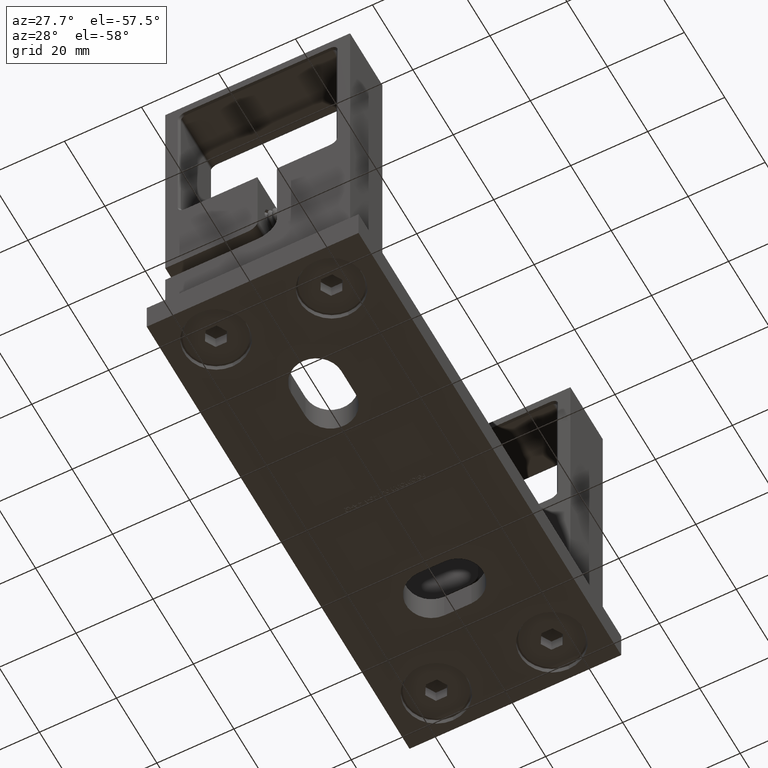
[diagram: clean part render]
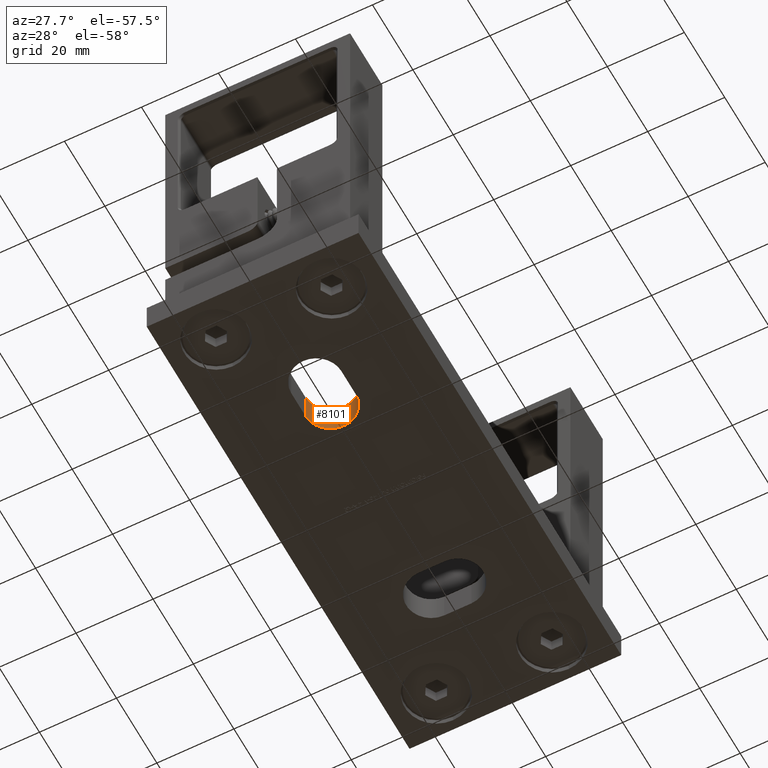
[diagram: same view with one face highlighted and labeled with its STEP entity id]
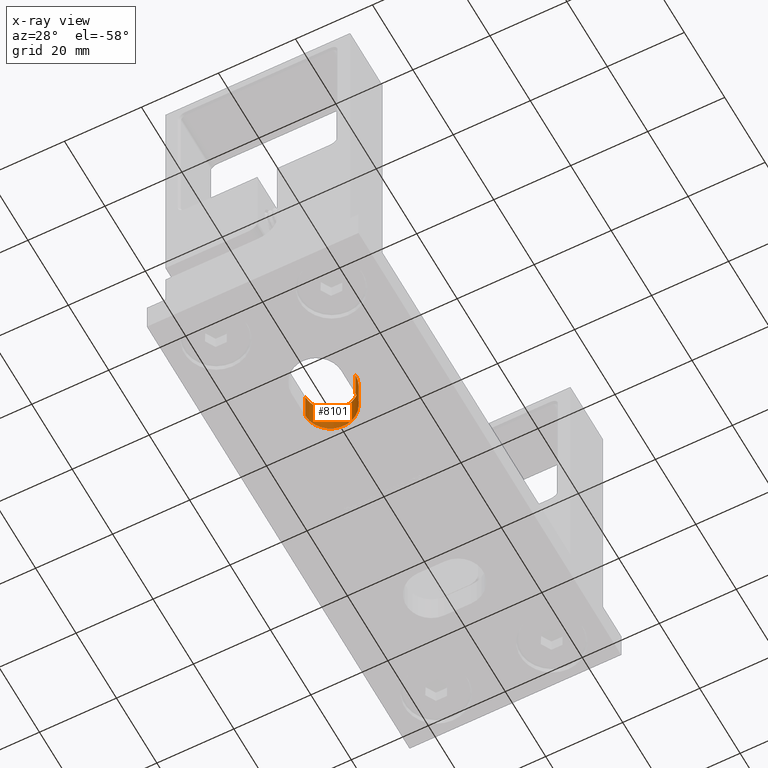
[diagram: x-ray of the same camera — body ghosted, the highlighted face saturated]
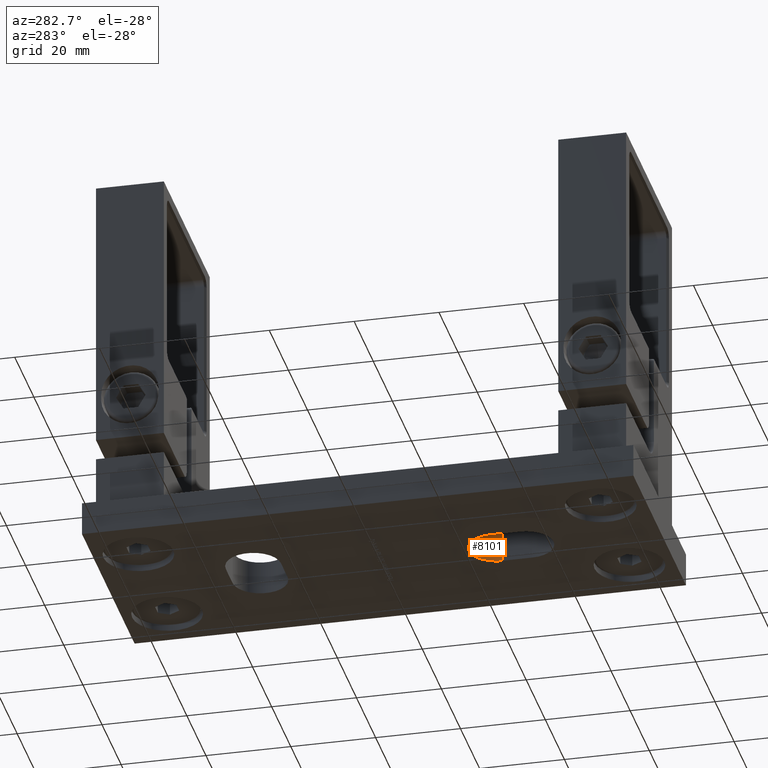
[diagram: same view with one face highlighted and labeled with its STEP entity id]
A machine part, auxiliary view. The second image highlights one B-rep face of the part: STEP entity #8101.
The next image is the same camera in x-ray: the body ghosted, the highlighted face saturated — about 0% of this face is hidden behind the body in this view.
A second angle (auxiliary view) of the same face is appended — the face is thin or edge-on in the first view.
In plain terms, the highlighted cylindrical surface (edge-blend (fillet) strip) has radius 6.5 mm, axis along (0, 0, 1).
Its self-contained STEP definition (entity closure, byte-faithful):
#408 = CARTESIAN_POINT ( 'NONE',  ( -1.285879139104721800E-015, 8.000000000000000000, 26.49999999999999600 ) ) ;
#1141 = CARTESIAN_POINT ( 'NONE',  ( 6.499999999999998200, -1.734723475976807100E-015, 26.49999999999999300 ) ) ;
#1156 = LINE ( 'NONE', #11840, #19721 ) ;
#2147 = ORIENTED_EDGE ( 'NONE', *, *, #4733, .F. ) ;
#2360 = VERTEX_POINT ( 'NONE', #18067 ) ;
#2477 = ORIENTED_EDGE ( 'NONE', *, *, #20538, .F. ) ;
#3403 = AXIS2_PLACEMENT_3D ( 'NONE', #408, #18595, #22259 ) ;
#3731 = VERTEX_POINT ( 'NONE', #5945 ) ;
#4041 = VERTEX_POINT ( 'NONE', #21049 ) ;
#4733 = EDGE_CURVE ( 'NONE', #3731, #4041, #20342, .T. ) ;
#5945 = CARTESIAN_POINT ( 'NONE',  ( 6.499999999999998200, 0.0000000000000000000, 26.49999999999999300 ) ) ;
#7261 = VERTEX_POINT ( 'NONE', #7496 ) ;
#7496 = CARTESIAN_POINT ( 'NONE',  ( 6.499999999999998200, 8.000000000000000000, 26.49999999999999300 ) ) ;
#7978 = AXIS2_PLACEMENT_3D ( 'NONE', #13733, #15759, #10214 ) ;
#8101 = ADVANCED_FACE ( 'NONE', ( #22339 ), #22311, .F. ) ;
#8504 = DIRECTION ( 'NONE',  ( -0.0000000000000000000, 1.000000000000000000, -0.0000000000000000000 ) ) ;
#9317 = ORIENTED_EDGE ( 'NONE', *, *, #18914, .T. ) ;
#10214 = DIRECTION ( 'NONE',  ( 0.0000000000000000000, 0.0000000000000000000, 1.000000000000000000 ) ) ;
#10824 = CIRCLE ( 'NONE', #3403, 6.499999999999999100 ) ;
#11840 = CARTESIAN_POINT ( 'NONE',  ( -6.500000000000000000, -1.734723475976807100E-015, 26.50000000000000000 ) ) ;
#12558 = VECTOR ( 'NONE', #13927, 1000.000000000000000 ) ;
#13733 = CARTESIAN_POINT ( 'NONE',  ( -1.285879139104721800E-015, -1.734723475976807100E-015, 26.49999999999999600 ) ) ;
#13927 = DIRECTION ( 'NONE',  ( -0.0000000000000000000, 1.000000000000000000, -0.0000000000000000000 ) ) ;
#14010 = CARTESIAN_POINT ( 'NONE',  ( -1.285879139104721800E-015, -1.734723475976807100E-015, 26.49999999999999600 ) ) ;
#14691 = EDGE_CURVE ( 'NONE', #3731, #7261, #16175, .T. ) ;
#15112 = DIRECTION ( 'NONE',  ( -0.0000000000000000000, 1.000000000000000000, -0.0000000000000000000 ) ) ;
#15738 = EDGE_LOOP ( 'NONE', ( #9317, #2477, #2147, #16469 ) ) ;
#15759 = DIRECTION ( 'NONE',  ( 0.0000000000000000000, 1.000000000000000000, 0.0000000000000000000 ) ) ;
#16175 = LINE ( 'NONE', #1141, #12558 ) ;
#16469 = ORIENTED_EDGE ( 'NONE', *, *, #14691, .T. ) ;
#18067 = CARTESIAN_POINT ( 'NONE',  ( -6.500000000000000000, 8.000000000000000000, 26.50000000000000000 ) ) ;
#18595 = DIRECTION ( 'NONE',  ( 0.0000000000000000000, 1.000000000000000000, 0.0000000000000000000 ) ) ;
#18914 = EDGE_CURVE ( 'NONE', #7261, #2360, #10824, .T. ) ;
#19242 = DIRECTION ( 'NONE',  ( 0.0000000000000000000, 0.0000000000000000000, 1.000000000000000000 ) ) ;
#19259 = AXIS2_PLACEMENT_3D ( 'NONE', #14010, #8504, #19242 ) ;
#19721 = VECTOR ( 'NONE', #15112, 1000.000000000000000 ) ;
#20342 = CIRCLE ( 'NONE', #7978, 6.499999999999999100 ) ;
#20538 = EDGE_CURVE ( 'NONE', #4041, #2360, #1156, .T. ) ;
#21049 = CARTESIAN_POINT ( 'NONE',  ( -6.500000000000000000, -1.734723475976807100E-015, 26.50000000000000000 ) ) ;
#22259 = DIRECTION ( 'NONE',  ( 0.0000000000000000000, 0.0000000000000000000, 1.000000000000000000 ) ) ;
#22311 = CYLINDRICAL_SURFACE ( 'NONE', #19259, 6.499999999999999100 ) ;
#22339 = FACE_OUTER_BOUND ( 'NONE', #15738, .T. ) ;